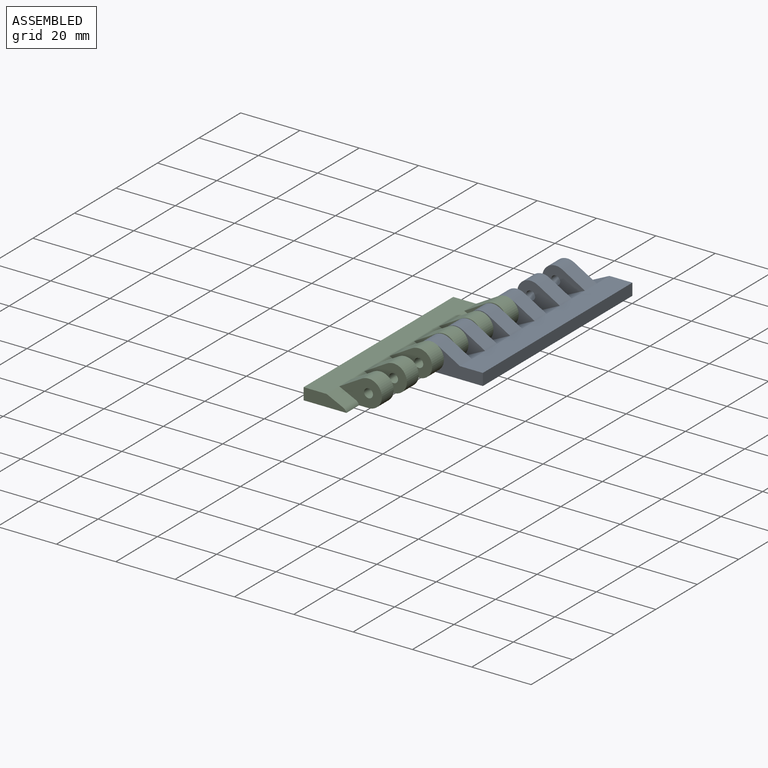
[diagram: assembled view]
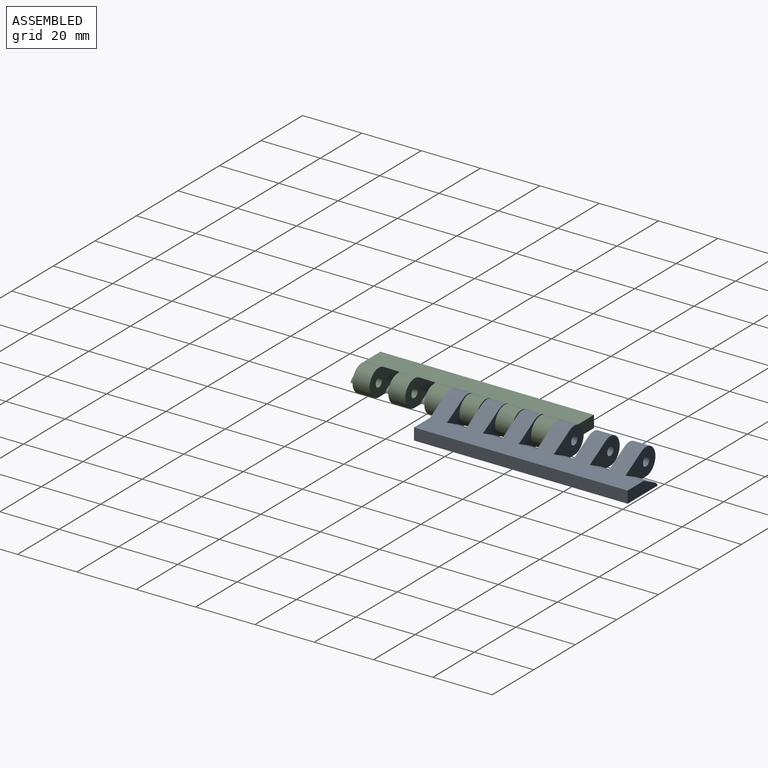
[diagram: assembled view, second angle]
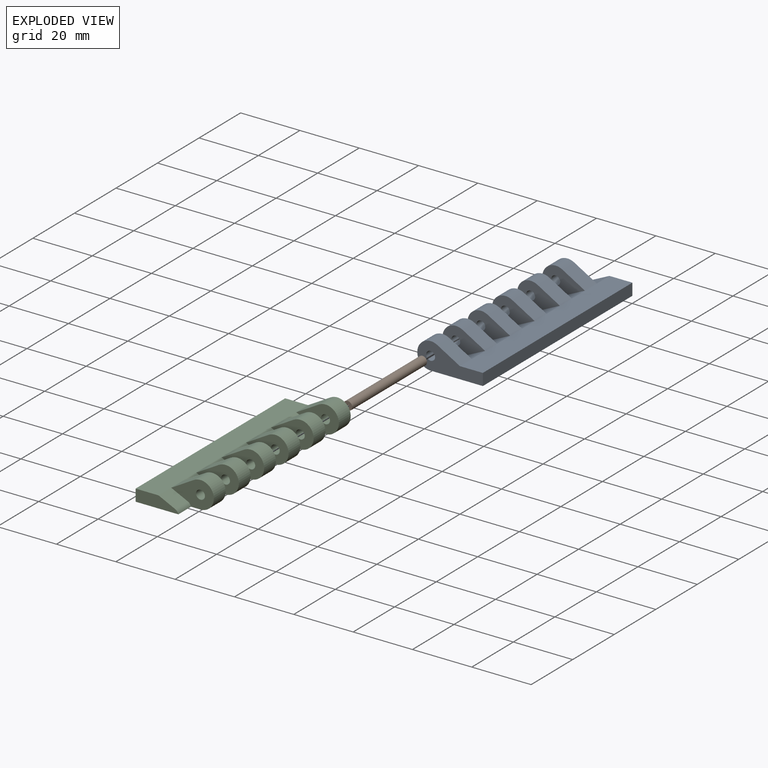
[diagram: exploded view]
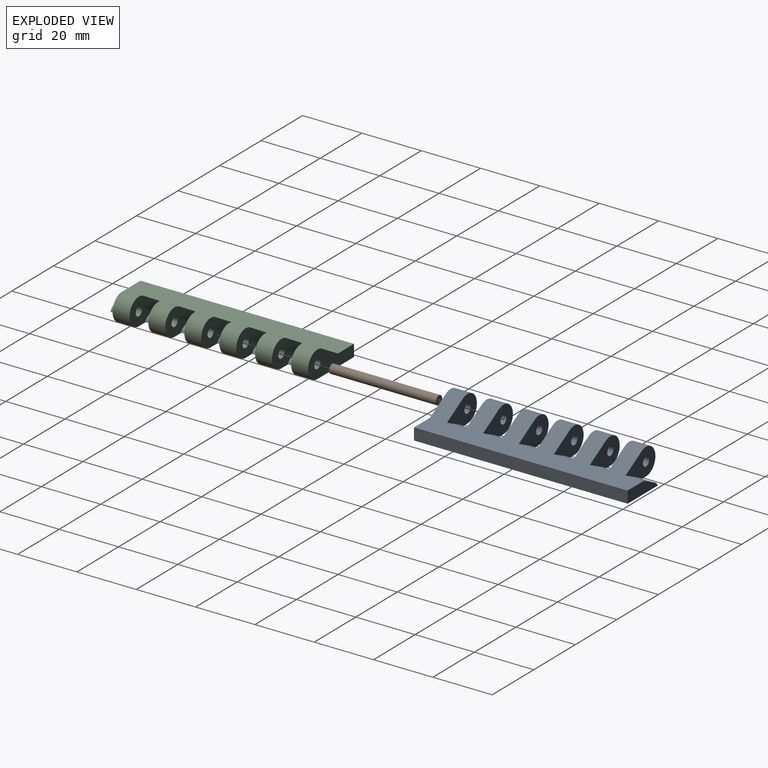
[diagram: exploded view, second angle]
ASSEMBLY  parts=3 mates=2
PART A: 46 faces, bbox 22.1x72x9 mm
  f0: plane 72x17.6mm, normal (0,0,-1), area 1146.5mm2, adj f1,f3,f5,f7,f12,f14,f15,f17
  f1: plane 22.1x9mm, normal (0,1,0), area 122.7mm2, adj f0,f6,f7,f8,f11,f45
  f2: cylinder r=1.5mm len=5.7mm, axis (0,-1,0), area 53.7mm2, adj f12,f15
  f3: cylinder r=4.5mm len=9mm, axis (0,-1,0), area 94mm2, adj f0,f10,f12,f15
  f4: cylinder r=1.5mm len=5.7mm, axis (0,-1,0), area 53.7mm2, adj f14,f18
  f5: cylinder r=4.5mm len=9mm, axis (0,-1,0), area 94mm2, adj f0,f9,f14,f18
  f6: cylinder r=1.5mm len=5.7mm, axis (0,-1,0), area 53.7mm2, adj f1,f17
  f7: cylinder r=4.5mm len=9mm, axis (0,-1,0), area 94mm2, adj f0,f1,f8,f17
  f8: plane 7.62x5.7mm, normal (-0.5,0,0.87), area 50.1mm2, adj f1,f7,f11,f17
  f9: plane 7.62x5.7mm, normal (-0.5,0,0.87), area 50.1mm2, adj f5,f11,f14,f18
  f10: plane 7.62x5.7mm, normal (-0.5,0,0.87), area 50.1mm2, adj f3,f11,f12,f15
  f11: plane 72x7.73mm, normal (0,0,1), area 556.8mm2, adj f1,f8,f9,f10,f13,f16,f19,f24
  f12: plane 14.37x9mm, normal (0,-1,0), area 75.9mm2, adj f0,f2,f3,f10,f13,f20
  f13: plane 6.1x5.59mm, normal (0.43,0,0.9), area 37.8mm2, adj f11,f12,f20,f23
  f14: plane 14.37x9mm, normal (0,-1,0), area 75.9mm2, adj f0,f4,f5,f9,f16,f21
  f15: plane 14.37x9mm, normal (0,1,0), area 75.9mm2, adj f0,f2,f3,f10,f16,f21
  f16: plane 6.35x5.59mm, normal (0.43,0,0.9), area 39.4mm2, adj f11,f14,f15,f21
  f17: plane 14.37x9mm, normal (0,-1,0), area 75.9mm2, adj f0,f6,f7,f8,f19,f22
  f18: plane 14.37x9mm, normal (0,1,0), area 75.9mm2, adj f0,f4,f5,f9,f19,f22
  f19: plane 6.45x5.59mm, normal (0.43,0,0.9), area 40mm2, adj f11,f17,f18,f22
  f20: cylinder r=2mm len=6.1mm, axis (0,1,0), area 10.8mm2, adj f0,f12,f13,f23
  f21: cylinder r=2mm len=6.35mm, axis (0,1,0), area 11.2mm2, adj f0,f14,f15,f16
  f22: cylinder r=2mm len=6.45mm, axis (0,1,0), area 11.4mm2, adj f0,f17,f18,f19
  f23: plane 14.37x9mm, normal (0,1,0), area 75.9mm2, adj f0,f13,f20,f29,f30,f31
  f24: plane 14.41x4mm, normal (0,-1,0), area 46.8mm2, adj f0,f11,f35,f42,f45
  f25: cylinder r=1.5mm len=5.7mm, axis (0,-1,0), area 53.7mm2, adj f34,f37
  f26: cylinder r=4.5mm len=9mm, axis (0,-1,0), area 94mm2, adj f0,f33,f34,f37
  f27: cylinder r=1.5mm len=5.7mm, axis (0,-1,0), area 53.7mm2, adj f36,f40
  f28: cylinder r=4.5mm len=9mm, axis (0,-1,0), area 94mm2, adj f0,f32,f36,f40
  f29: cylinder r=1.5mm len=5.7mm, axis (0,-1,0), area 53.7mm2, adj f23,f39
  f30: cylinder r=4.5mm len=9mm, axis (0,-1,0), area 94mm2, adj f0,f23,f31,f39
  f31: plane 7.62x5.7mm, normal (-0.5,0,0.87), area 50.1mm2, adj f11,f23,f30,f39
  f32: plane 7.62x5.7mm, normal (-0.5,0,0.87), area 50.1mm2, adj f11,f28,f36,f40
  f33: plane 7.62x5.7mm, normal (-0.5,0,0.87), area 50.1mm2, adj f11,f26,f34,f37
  f34: plane 14.37x9mm, normal (0,-1,0), area 75.9mm2, adj f0,f25,f26,f33,f35,f42
  f35: plane 6.1x5.59mm, normal (0.43,0,0.9), area 37.8mm2, adj f11,f24,f34,f42
  f36: plane 14.37x9mm, normal (0,-1,0), area 75.9mm2, adj f0,f27,f28,f32,f38,f43
  f37: plane 14.37x9mm, normal (0,1,0), area 75.9mm2, adj f0,f25,f26,f33,f38,f43
  f38: plane 6.35x5.59mm, normal (0.43,0,0.9), area 39.4mm2, adj f11,f36,f37,f43
  f39: plane 14.37x9mm, normal (0,-1,0), area 75.9mm2, adj f0,f29,f30,f31,f41,f44
  f40: plane 14.37x9mm, normal (0,1,0), area 75.9mm2, adj f0,f27,f28,f32,f41,f44
  f41: plane 6.45x5.59mm, normal (0.43,0,0.9), area 40mm2, adj f11,f39,f40,f44
  f42: cylinder r=2mm len=6.1mm, axis (0,1,0), area 10.8mm2, adj f0,f24,f34,f35
  f43: cylinder r=2mm len=6.35mm, axis (0,1,0), area 11.2mm2, adj f0,f36,f37,f38
  f44: cylinder r=2mm len=6.45mm, axis (0,1,0), area 11.4mm2, adj f0,f39,f40,f41
  f45: plane 72x4mm, normal (-1,0,0), area 288mm2, adj f0,f1,f11,f24
PART B: 4 faces, bbox 3x36x3 mm
  f0: plane 3x3mm, normal (0,-1,0), area 6.3mm2, adj f1,f2
  f1: cylinder r=0.5mm len=36mm, axis (0,1,0), area 113.1mm2, adj f0,f3
  f2: cylinder r=1.5mm len=36mm, axis (0,1,0), area 339.3mm2, adj f0,f3
  f3: plane 3x3mm, normal (0,1,0), area 6.3mm2, adj f1,f2
PART C: same geometry as A
PLACE A rot(axis=(0,0,1),180deg) t=(1.7,-33.16,-3.36)mm
PLACE B t=(1.7,-32.56,-3.36)mm
PLACE C t=(1.7,-32.56,-3.36)mm
MATE cylindrical B.f1 <-> A.f2  axis (0,1,0) through (1.7,-50.86,0.64)mm
MATE revolute C.f2 <-> A.f2  axis (0,-1,0) through (1.7,-32.71,0.64)mm
